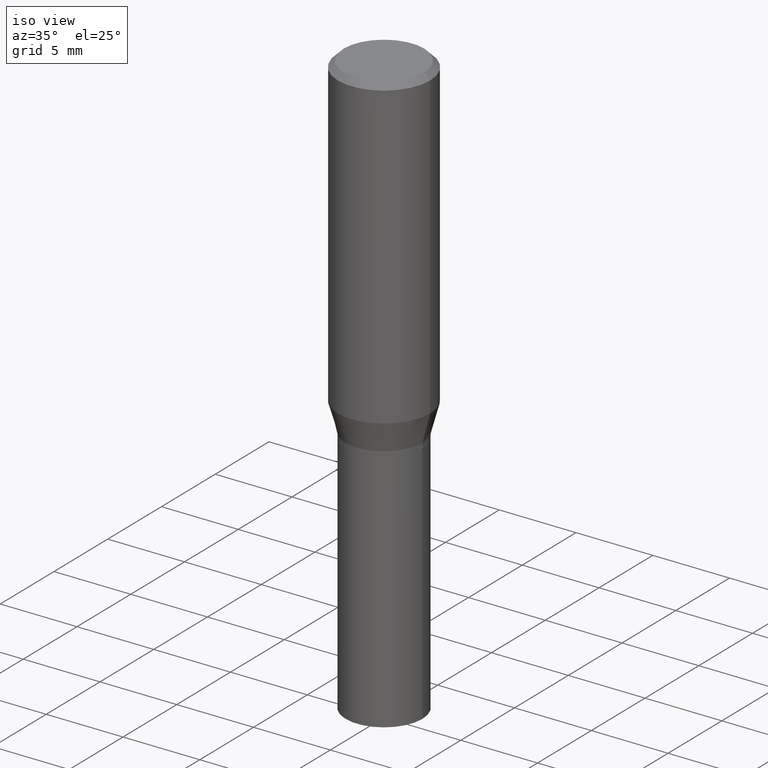
[diagram: clean part render]
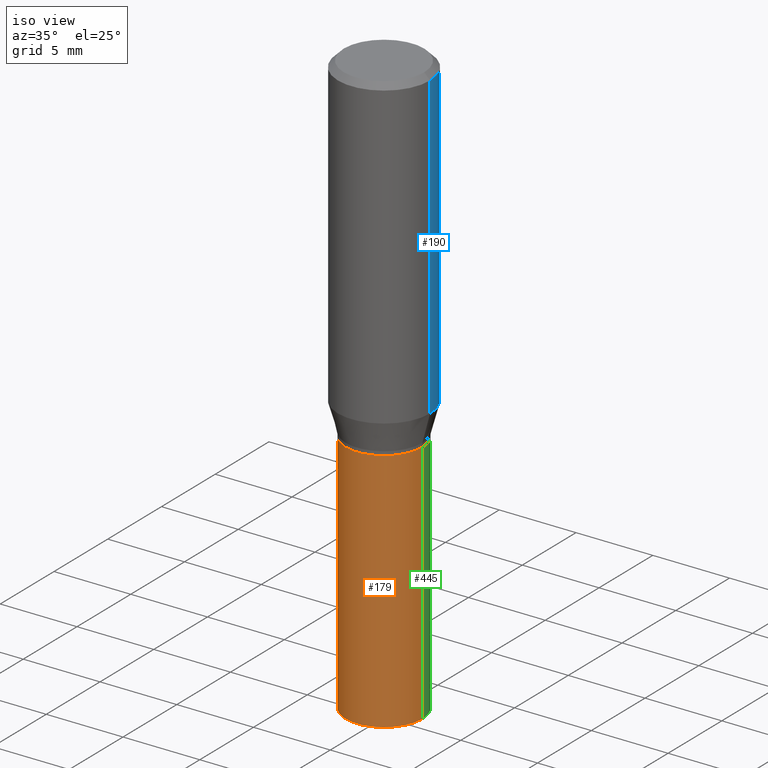
[diagram: same view with three faces highlighted in distinct colors, each labeled with its STEP entity id]
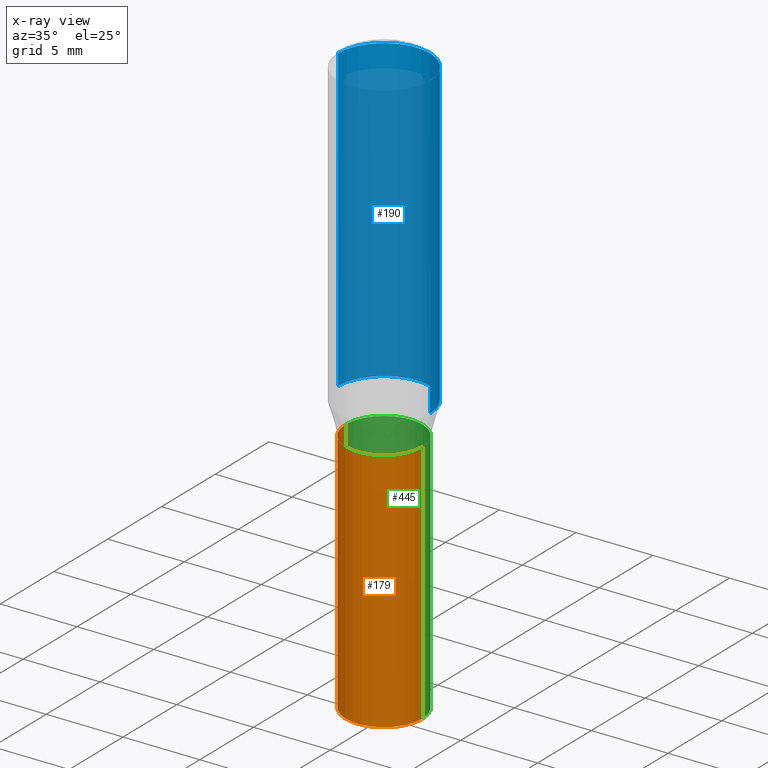
[diagram: x-ray of the same camera — body ghosted, the three highlighted faces saturated]
A machine part, iso view with three faces highlighted in distinct colors.
The next image is the same camera in x-ray (body ghosted, the three faces saturated) — at least one of them is partly hidden behind the body in this view.
Their STEP definitions:

[orange] entity #179 — the highlighted cylindrical surface (partial cylindrical patch) has radius 2.5006 mm, axis along (-0, 0, 1).
#15 = CARTESIAN_POINT ( 'NONE',  ( 0.09844999999999999585, -6.874726756182129545E-16, 4.800596035771099214E-30 ) ) ;
#55 = CARTESIAN_POINT ( 'NONE',  ( 0.000000000000000000, 0.000000000000000000, 0.000000000000000000 ) ) ;
#74 = EDGE_CURVE ( 'NONE', #188, #290, #205, .T. ) ;
#79 = DIRECTION ( 'NONE',  ( -2.445468806185136597E-29, 3.491481338843145583E-15, 1.000000000000000000 ) ) ;
#83 = CARTESIAN_POINT ( 'NONE',  ( 0.09844999999999999585, -5.924694683882931526E-15, -1.500000000000000222 ) ) ;
#87 = CARTESIAN_POINT ( 'NONE',  ( 2.127802408261687534E-29, -3.037937912927421601E-15, -0.8701000000000000956 ) ) ;
#88 = ORIENTED_EDGE ( 'NONE', *, *, #74, .F. ) ;
#96 = ORIENTED_EDGE ( 'NONE', *, *, #212, .T. ) ;
#100 = AXIS2_PLACEMENT_3D ( 'NONE', #87, #172, #296 ) ;
#121 = CARTESIAN_POINT ( 'NONE',  ( -0.09844999999999999585, 6.995293233558186035E-16, -4.842691596355954042E-30 ) ) ;
#126 = ORIENTED_EDGE ( 'NONE', *, *, #141, .T. ) ;
#141 = EDGE_CURVE ( 'NONE', #204, #290, #223, .T. ) ;
#146 = FACE_OUTER_BOUND ( 'NONE', #169, .T. ) ;
#149 = AXIS2_PLACEMENT_3D ( 'NONE', #340, #221, #302 ) ;
#166 = CARTESIAN_POINT ( 'NONE',  ( -0.09844999999999999585, -3.438050637240251581E-15, -0.8701000000000000956 ) ) ;
#169 = EDGE_LOOP ( 'NONE', ( #268, #96, #126, #88 ) ) ;
#172 = DIRECTION ( 'NONE',  ( -2.445468806185136597E-29, 3.491481338843145583E-15, 1.000000000000000000 ) ) ;
#179 = ADVANCED_FACE ( 'NONE', ( #146 ), #386, .T. ) ;
#188 = VERTEX_POINT ( 'NONE', #166 ) ;
#199 = EDGE_CURVE ( 'NONE', #316, #188, #259, .T. ) ;
#204 = VERTEX_POINT ( 'NONE', #83 ) ;
#205 = CIRCLE ( 'NONE', #100, 0.09844999999999999585 ) ;
#212 = EDGE_CURVE ( 'NONE', #316, #204, #359, .T. ) ;
#221 = DIRECTION ( 'NONE',  ( -2.445468806185136597E-29, 3.491481338843145583E-15, 1.000000000000000000 ) ) ;
#223 = LINE ( 'NONE', #15, #278 ) ;
#259 = LINE ( 'NONE', #121, #376 ) ;
#264 = DIRECTION ( 'NONE',  ( -2.445468806185136877E-29, 3.491481338843145188E-15, 1.000000000000000000 ) ) ;
#268 = ORIENTED_EDGE ( 'NONE', *, *, #199, .F. ) ;
#278 = VECTOR ( 'NONE', #345, 39.37007874015748143 ) ;
#290 = VERTEX_POINT ( 'NONE', #465 ) ;
#296 = DIRECTION ( 'NONE',  ( 1.000000000000000000, -6.982962677686265922E-15, 0.000000000000000000 ) ) ;
#302 = DIRECTION ( 'NONE',  ( 1.000000000000000000, -6.982962677686265922E-15, 0.000000000000000000 ) ) ;
#316 = VERTEX_POINT ( 'NONE', #357 ) ;
#332 = DIRECTION ( 'NONE',  ( 1.000000000000000000, -6.982962677686266711E-15, 4.876176775795936353E-29 ) ) ;
#335 = AXIS2_PLACEMENT_3D ( 'NONE', #55, #79, #332 ) ;
#340 = CARTESIAN_POINT ( 'NONE',  ( 3.668203209277704895E-29, -5.237222008264718177E-15, -1.500000000000000222 ) ) ;
#345 = DIRECTION ( 'NONE',  ( -2.445468806185136877E-29, 3.491481338843145188E-15, 1.000000000000000000 ) ) ;
#357 = CARTESIAN_POINT ( 'NONE',  ( -0.09844999999999999585, -3.438050637240251581E-15, -1.500000000000000222 ) ) ;
#359 = CIRCLE ( 'NONE', #149, 0.09844999999999999585 ) ;
#376 = VECTOR ( 'NONE', #264, 39.37007874015748143 ) ;
#386 = CYLINDRICAL_SURFACE ( 'NONE', #335, 0.09844999999999999585 ) ;
#465 = CARTESIAN_POINT ( 'NONE',  ( 0.09844999999999999585, -3.725410588545634555E-15, -0.8701000000000000956 ) ) ;

[blue] entity #190 — the highlighted cylindrical surface (partial cylindrical patch) has radius 2.9997 mm, axis along (-0, 0, 1).
#1 = CARTESIAN_POINT ( 'NONE',  ( -0.1180999999999999966, -5.605231488820216014E-16, -0.01499999999999999944 ) ) ;
#12 = VERTEX_POINT ( 'NONE', #271 ) ;
#21 = ORIENTED_EDGE ( 'NONE', *, *, #117, .T. ) ;
#28 = CARTESIAN_POINT ( 'NONE',  ( 3.668203209277705088E-31, -5.237222008264718399E-17, -0.01499999999999999944 ) ) ;
#41 = EDGE_LOOP ( 'NONE', ( #139, #21, #354, #113 ) ) ;
#62 = CARTESIAN_POINT ( 'NONE',  ( 0.1180999999999999966, -8.246878922347480654E-16, 5.758764772215000440E-30 ) ) ;
#71 = VERTEX_POINT ( 'NONE', #298 ) ;
#75 = CIRCLE ( 'NONE', #140, 0.1180999999999999966 ) ;
#77 = VECTOR ( 'NONE', #415, 39.37007874015748143 ) ;
#84 = DIRECTION ( 'NONE',  ( -2.445468806185136877E-29, 3.491481338843145188E-15, 1.000000000000000000 ) ) ;
#105 = AXIS2_PLACEMENT_3D ( 'NONE', #410, #372, #158 ) ;
#113 = ORIENTED_EDGE ( 'NONE', *, *, #323, .F. ) ;
#117 = EDGE_CURVE ( 'NONE', #71, #238, #201, .T. ) ;
#122 = CARTESIAN_POINT ( 'NONE',  ( 0.1180999999999999966, -8.770601123173952432E-16, -0.01499999999999999944 ) ) ;
#139 = ORIENTED_EDGE ( 'NONE', *, *, #247, .T. ) ;
#140 = AXIS2_PLACEMENT_3D ( 'NONE', #160, #299, #382 ) ;
#158 = DIRECTION ( 'NONE',  ( 1.000000000000000000, -6.982962677686266711E-15, 4.876176775795936353E-29 ) ) ;
#160 = CARTESIAN_POINT ( 'NONE',  ( 1.924009758381236534E-29, -2.746976019546752715E-15, -0.7867652016312725038 ) ) ;
#190 = ADVANCED_FACE ( 'NONE', ( #421 ), #447, .T. ) ;
#201 = LINE ( 'NONE', #261, #363 ) ;
#238 = VERTEX_POINT ( 'NONE', #1 ) ;
#240 = CIRCLE ( 'NONE', #269, 0.1180999999999999966 ) ;
#247 = EDGE_CURVE ( 'NONE', #12, #71, #75, .T. ) ;
#261 = CARTESIAN_POINT ( 'NONE',  ( -0.1180999999999999966, 8.391509709326782957E-16, -5.809262341591043784E-30 ) ) ;
#269 = AXIS2_PLACEMENT_3D ( 'NONE', #28, #390, #277 ) ;
#271 = CARTESIAN_POINT ( 'NONE',  ( 0.1180999999999999966, -3.571663911781501372E-15, -0.7867652016312725038 ) ) ;
#277 = DIRECTION ( 'NONE',  ( 1.000000000000000000, -6.982962677686266711E-15, 0.000000000000000000 ) ) ;
#298 = CARTESIAN_POINT ( 'NONE',  ( -0.1180999999999999966, -1.907825048614074518E-15, -0.7867652016312725038 ) ) ;
#299 = DIRECTION ( 'NONE',  ( -2.445468806185136597E-29, 3.491481338843145583E-15, 1.000000000000000000 ) ) ;
#305 = LINE ( 'NONE', #62, #77 ) ;
#323 = EDGE_CURVE ( 'NONE', #12, #466, #305, .T. ) ;
#338 = EDGE_CURVE ( 'NONE', #466, #238, #240, .T. ) ;
#354 = ORIENTED_EDGE ( 'NONE', *, *, #338, .F. ) ;
#363 = VECTOR ( 'NONE', #84, 39.37007874015748143 ) ;
#372 = DIRECTION ( 'NONE',  ( -2.445468806185136597E-29, 3.491481338843145583E-15, 1.000000000000000000 ) ) ;
#382 = DIRECTION ( 'NONE',  ( 1.000000000000000000, -6.982962677686269077E-15, 0.000000000000000000 ) ) ;
#390 = DIRECTION ( 'NONE',  ( -2.445468806185136597E-29, 3.491481338843145583E-15, 1.000000000000000000 ) ) ;
#410 = CARTESIAN_POINT ( 'NONE',  ( 0.000000000000000000, 0.000000000000000000, 0.000000000000000000 ) ) ;
#415 = DIRECTION ( 'NONE',  ( -2.445468806185136877E-29, 3.491481338843145188E-15, 1.000000000000000000 ) ) ;
#421 = FACE_OUTER_BOUND ( 'NONE', #41, .T. ) ;
#447 = CYLINDRICAL_SURFACE ( 'NONE', #105, 0.1180999999999999966 ) ;
#466 = VERTEX_POINT ( 'NONE', #122 ) ;

[green] entity #445 — the highlighted cylindrical surface (partial cylindrical patch) has radius 2.5006 mm, axis along (-0, 0, 1).
#15 = CARTESIAN_POINT ( 'NONE',  ( 0.09844999999999999585, -6.874726756182129545E-16, 4.800596035771099214E-30 ) ) ;
#83 = CARTESIAN_POINT ( 'NONE',  ( 0.09844999999999999585, -5.924694683882931526E-15, -1.500000000000000222 ) ) ;
#92 = EDGE_LOOP ( 'NONE', ( #462, #439, #217, #365 ) ) ;
#94 = DIRECTION ( 'NONE',  ( -2.445468806185136597E-29, 3.491481338843145583E-15, 1.000000000000000000 ) ) ;
#106 = AXIS2_PLACEMENT_3D ( 'NONE', #236, #200, #388 ) ;
#121 = CARTESIAN_POINT ( 'NONE',  ( -0.09844999999999999585, 6.995293233558186035E-16, -4.842691596355954042E-30 ) ) ;
#135 = DIRECTION ( 'NONE',  ( 1.000000000000000000, -6.982962677686265922E-15, 0.000000000000000000 ) ) ;
#141 = EDGE_CURVE ( 'NONE', #204, #290, #223, .T. ) ;
#166 = CARTESIAN_POINT ( 'NONE',  ( -0.09844999999999999585, -3.438050637240251581E-15, -0.8701000000000000956 ) ) ;
#170 = AXIS2_PLACEMENT_3D ( 'NONE', #430, #94, #222 ) ;
#188 = VERTEX_POINT ( 'NONE', #166 ) ;
#199 = EDGE_CURVE ( 'NONE', #316, #188, #259, .T. ) ;
#200 = DIRECTION ( 'NONE',  ( -2.445468806185136597E-29, 3.491481338843145583E-15, 1.000000000000000000 ) ) ;
#204 = VERTEX_POINT ( 'NONE', #83 ) ;
#206 = DIRECTION ( 'NONE',  ( -2.445468806185136597E-29, 3.491481338843145583E-15, 1.000000000000000000 ) ) ;
#217 = ORIENTED_EDGE ( 'NONE', *, *, #286, .F. ) ;
#222 = DIRECTION ( 'NONE',  ( 1.000000000000000000, -6.982962677686265922E-15, 0.000000000000000000 ) ) ;
#223 = LINE ( 'NONE', #15, #278 ) ;
#236 = CARTESIAN_POINT ( 'NONE',  ( 0.000000000000000000, 0.000000000000000000, 0.000000000000000000 ) ) ;
#250 = AXIS2_PLACEMENT_3D ( 'NONE', #378, #206, #135 ) ;
#259 = LINE ( 'NONE', #121, #376 ) ;
#264 = DIRECTION ( 'NONE',  ( -2.445468806185136877E-29, 3.491481338843145188E-15, 1.000000000000000000 ) ) ;
#278 = VECTOR ( 'NONE', #345, 39.37007874015748143 ) ;
#286 = EDGE_CURVE ( 'NONE', #290, #188, #442, .T. ) ;
#290 = VERTEX_POINT ( 'NONE', #465 ) ;
#295 = CIRCLE ( 'NONE', #170, 0.09844999999999999585 ) ;
#316 = VERTEX_POINT ( 'NONE', #357 ) ;
#345 = DIRECTION ( 'NONE',  ( -2.445468806185136877E-29, 3.491481338843145188E-15, 1.000000000000000000 ) ) ;
#357 = CARTESIAN_POINT ( 'NONE',  ( -0.09844999999999999585, -3.438050637240251581E-15, -1.500000000000000222 ) ) ;
#365 = ORIENTED_EDGE ( 'NONE', *, *, #141, .F. ) ;
#376 = VECTOR ( 'NONE', #264, 39.37007874015748143 ) ;
#378 = CARTESIAN_POINT ( 'NONE',  ( 2.127802408261687534E-29, -3.037937912927421601E-15, -0.8701000000000000956 ) ) ;
#380 = CYLINDRICAL_SURFACE ( 'NONE', #106, 0.09844999999999999585 ) ;
#388 = DIRECTION ( 'NONE',  ( 1.000000000000000000, -6.982962677686266711E-15, 4.876176775795936353E-29 ) ) ;
#409 = EDGE_CURVE ( 'NONE', #204, #316, #295, .T. ) ;
#430 = CARTESIAN_POINT ( 'NONE',  ( 3.668203209277704895E-29, -5.237222008264718177E-15, -1.500000000000000222 ) ) ;
#439 = ORIENTED_EDGE ( 'NONE', *, *, #199, .T. ) ;
#442 = CIRCLE ( 'NONE', #250, 0.09844999999999999585 ) ;
#445 = ADVANCED_FACE ( 'NONE', ( #453 ), #380, .T. ) ;
#453 = FACE_OUTER_BOUND ( 'NONE', #92, .T. ) ;
#462 = ORIENTED_EDGE ( 'NONE', *, *, #409, .T. ) ;
#465 = CARTESIAN_POINT ( 'NONE',  ( 0.09844999999999999585, -3.725410588545634555E-15, -0.8701000000000000956 ) ) ;